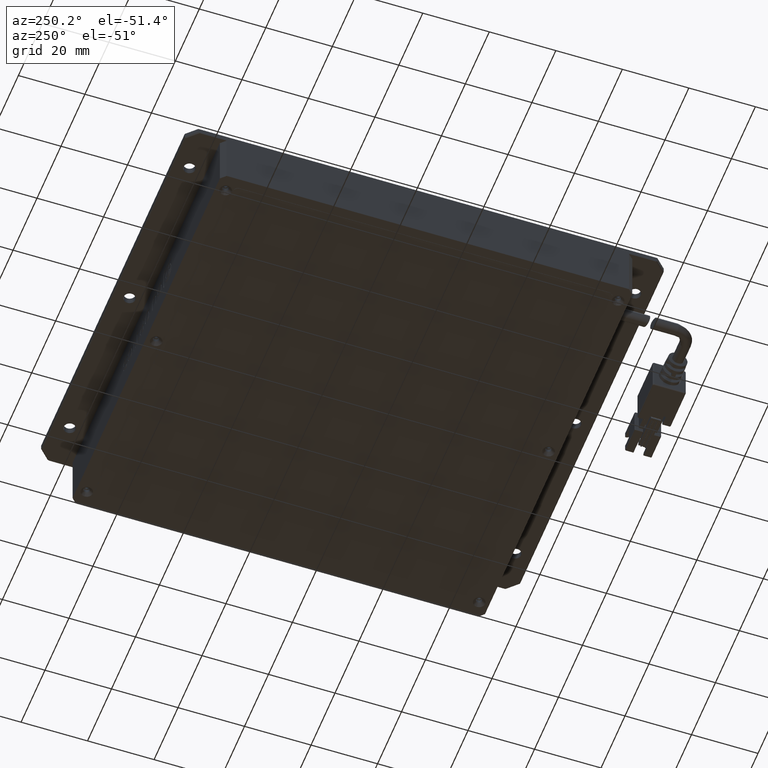
[diagram: clean part render]
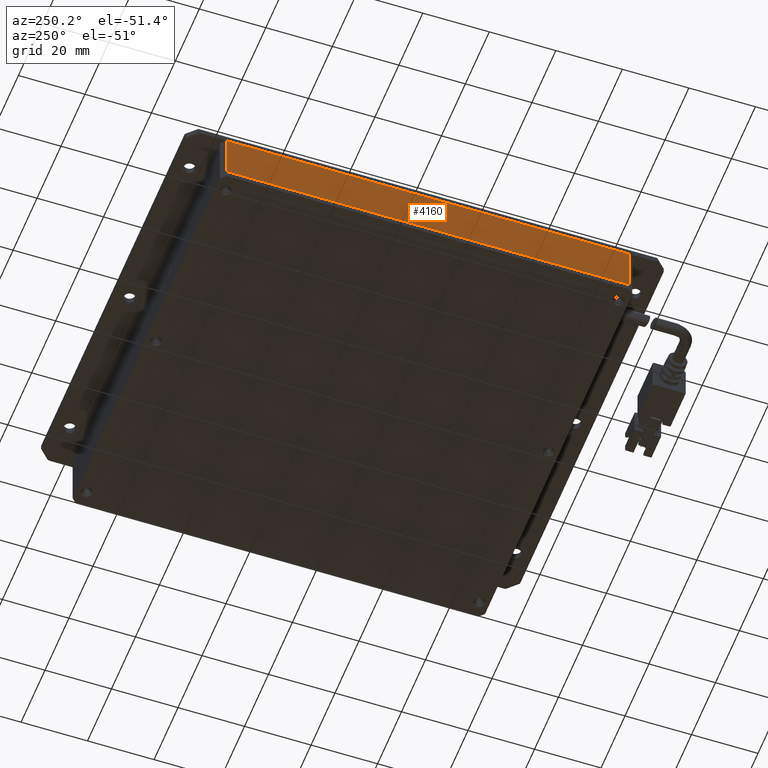
[diagram: same view with one face highlighted and labeled with its STEP entity id]
A machine part, auxiliary view. The second image highlights one B-rep face of the part: STEP entity #4160.
In plain terms, the highlighted planar face has unit normal (1, 0, 0).
Its self-contained STEP definition (entity closure, byte-faithful):
#4160 = ADVANCED_FACE ( 'NONE', ( #75274 ), #37445, .F. ) ;
#16222 = CARTESIAN_POINT ( 'NONE',  ( -63.35509736540663500, -49.61034746086289000, -1.637578961322105900E-011 ) ) ;
#16696 = LINE ( 'NONE', #94201, #44776 ) ;
#18271 = AXIS2_PLACEMENT_3D ( 'NONE', #68904, #22090, #76769 ) ;
#20340 = VERTEX_POINT ( 'NONE', #90132 ) ;
#20415 = ORIENTED_EDGE ( 'NONE', *, *, #38704, .F. ) ;
#22090 = DIRECTION ( 'NONE',  ( 1.000000000000000000, 0.0000000000000000000, 0.0000000000000000000 ) ) ;
#22214 = DIRECTION ( 'NONE',  ( 0.0000000000000000000, -1.000000000000000000, -0.0000000000000000000 ) ) ;
#30846 = VERTEX_POINT ( 'NONE', #57221 ) ;
#36084 = CARTESIAN_POINT ( 'NONE',  ( -63.35509736540663500, 72.88965253913710300, -1.637058544279312900E-011 ) ) ;
#37445 = PLANE ( 'NONE',  #18271 ) ;
#38704 = EDGE_CURVE ( 'NONE', #30846, #77787, #16696, .T. ) ;
#43091 = CARTESIAN_POINT ( 'NONE',  ( -63.35509736540663500, 71.38965253913710300, 13.99999999998362900 ) ) ;
#43195 = LINE ( 'NONE', #100075, #82395 ) ;
#43693 = ORIENTED_EDGE ( 'NONE', *, *, #71312, .T. ) ;
#44776 = VECTOR ( 'NONE', #47430, 1000.000000000000000 ) ;
#45467 = CARTESIAN_POINT ( 'NONE',  ( -63.35509736540665000, 71.38965253913708900, 13.99999999998362900 ) ) ;
#47430 = DIRECTION ( 'NONE',  ( 0.0000000000000000000, 0.0000000000000000000, -1.000000000000000000 ) ) ;
#48251 = ORIENTED_EDGE ( 'NONE', *, *, #68794, .F. ) ;
#53326 = DIRECTION ( 'NONE',  ( 0.0000000000000000000, -0.0000000000000000000, -1.000000000000000000 ) ) ;
#57221 = CARTESIAN_POINT ( 'NONE',  ( -63.35509736540663500, -49.61034746086289000, 13.99999999998362900 ) ) ;
#59227 = EDGE_CURVE ( 'NONE', #77787, #20340, #72773, .T. ) ;
#60194 = VERTEX_POINT ( 'NONE', #43091 ) ;
#64440 = ORIENTED_EDGE ( 'NONE', *, *, #59227, .F. ) ;
#68794 = EDGE_CURVE ( 'NONE', #60194, #30846, #43195, .T. ) ;
#68904 = CARTESIAN_POINT ( 'NONE',  ( -63.35509736540663500, -51.11034746086289000, 13.99999999998362900 ) ) ;
#71019 = LINE ( 'NONE', #45467, #89340 ) ;
#71312 = EDGE_CURVE ( 'NONE', #60194, #20340, #71019, .T. ) ;
#72773 = LINE ( 'NONE', #36084, #88642 ) ;
#75274 = FACE_OUTER_BOUND ( 'NONE', #77783, .T. ) ;
#76769 = DIRECTION ( 'NONE',  ( 0.0000000000000000000, 0.0000000000000000000, -1.000000000000000000 ) ) ;
#77783 = EDGE_LOOP ( 'NONE', ( #20415, #48251, #43693, #64440 ) ) ;
#77787 = VERTEX_POINT ( 'NONE', #16222 ) ;
#82395 = VECTOR ( 'NONE', #22214, 1000.000000000000000 ) ;
#82960 = DIRECTION ( 'NONE',  ( 0.0000000000000000000, 1.000000000000000000, 0.0000000000000000000 ) ) ;
#88642 = VECTOR ( 'NONE', #82960, 1000.000000000000000 ) ;
#89340 = VECTOR ( 'NONE', #53326, 1000.000000000000000 ) ;
#90132 = CARTESIAN_POINT ( 'NONE',  ( -63.35509736540663500, 71.38965253913710300, -1.637058544279312900E-011 ) ) ;
#94201 = CARTESIAN_POINT ( 'NONE',  ( -63.35509736540663500, -49.61034746086289000, 13.99999999998362900 ) ) ;
#100075 = CARTESIAN_POINT ( 'NONE',  ( -63.35509736540663500, -51.11034746086289000, 13.99999999998362900 ) ) ;